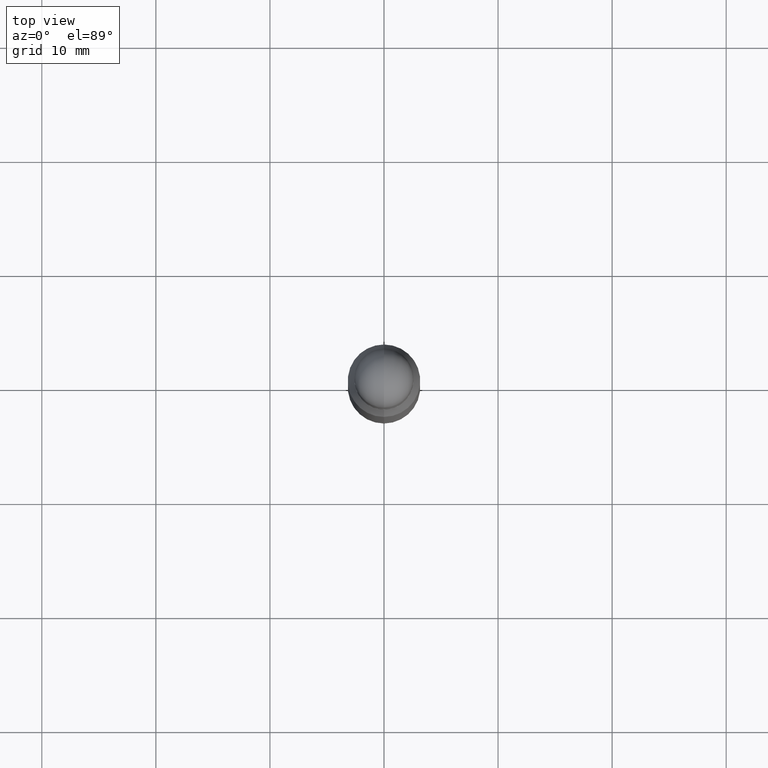
[diagram: clean part render]
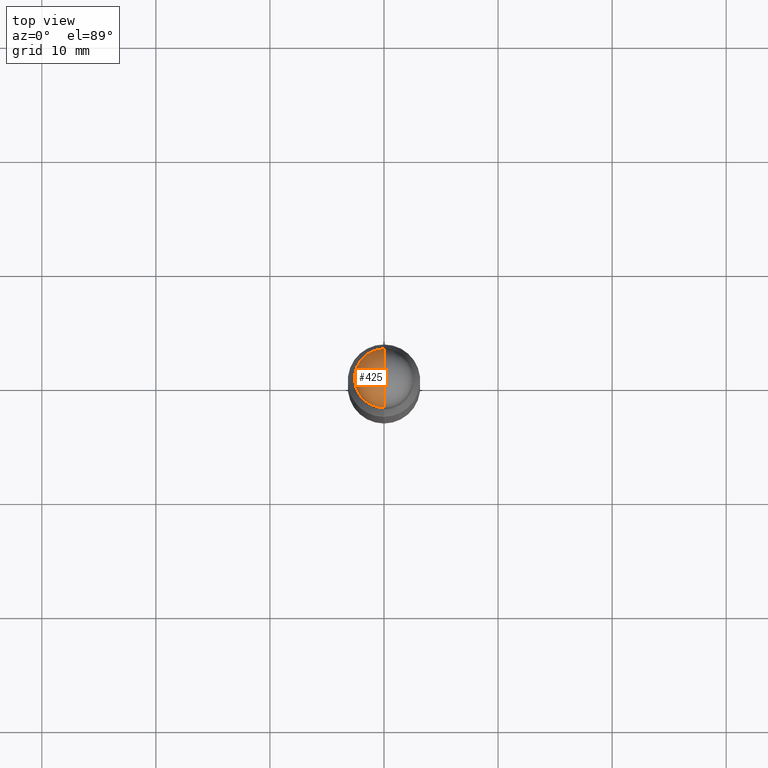
[diagram: same view with one face highlighted and labeled with its STEP entity id]
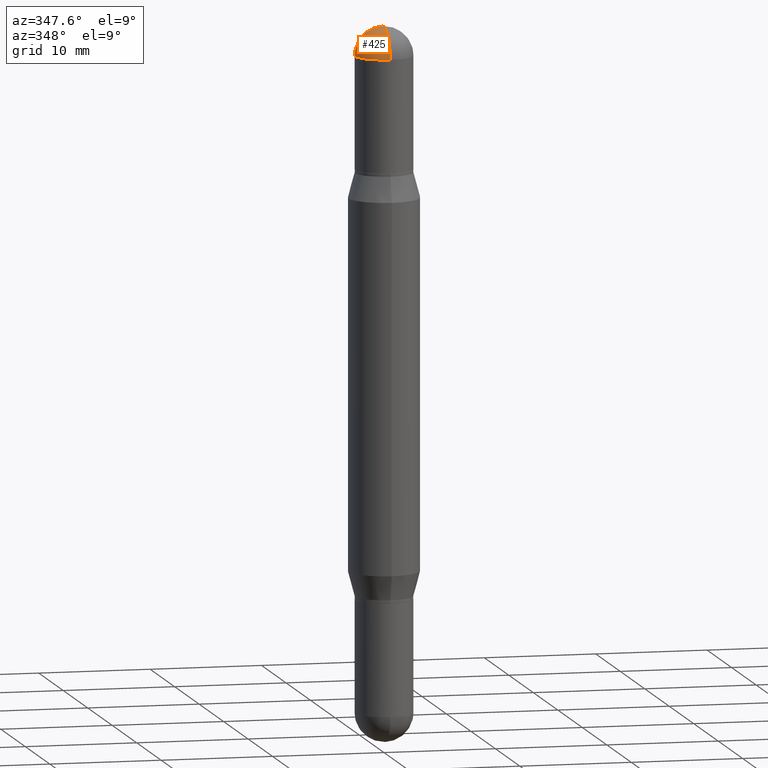
[diagram: same view with one face highlighted and labeled with its STEP entity id]
A machine part, top view. The second image highlights one B-rep face of the part: STEP entity #425.
A second angle (auxiliary view) of the same face is appended — the face is thin or edge-on in the first view.
In plain terms, the highlighted spherical surface has radius 2.5794 mm.
Its self-contained STEP definition (entity closure, byte-faithful):
#48 = ORIENTED_EDGE ( 'NONE', *, *, #266, .T. ) ;
#87 = DIRECTION ( 'NONE',  ( -1.000000000000000000, 6.982962677686265922E-15, 1.566701062080016245E-31 ) ) ;
#95 = AXIS2_PLACEMENT_3D ( 'NONE', #864, #421, #163 ) ;
#110 = CIRCLE ( 'NONE', #802, 0.1015499999999999736 ) ;
#117 = CARTESIAN_POINT ( 'NONE',  ( -0.1015500000000000985, -3.647310594632026057E-16, -0.1015499999999999042 ) ) ;
#155 = DIRECTION ( 'NONE',  ( 1.000000000000000000, -6.860497997771530774E-15, -5.827999781331232286E-31 ) ) ;
#160 = CIRCLE ( 'NONE', #711, 0.1015499999999999736 ) ;
#163 = DIRECTION ( 'NONE',  ( 1.000000000000000000, -6.982962677686265922E-15, 0.000000000000000000 ) ) ;
#175 = VERTEX_POINT ( 'NONE', #675 ) ;
#255 = ORIENTED_EDGE ( 'NONE', *, *, #420, .F. ) ;
#266 = EDGE_CURVE ( 'NONE', #704, #175, #555, .T. ) ;
#398 = AXIS2_PLACEMENT_3D ( 'NONE', #1043, #442, #627 ) ;
#420 = EDGE_CURVE ( 'NONE', #732, #175, #160, .T. ) ;
#421 = DIRECTION ( 'NONE',  ( 2.445468806185136597E-29, 3.479614466977828254E-15, 1.000000000000000000 ) ) ;
#423 = DIRECTION ( 'NONE',  ( -6.982962677686266711E-15, -1.000000000000000000, 0.000000000000000000 ) ) ;
#425 = ADVANCED_FACE ( 'NONE', ( #665 ), #924, .T. ) ;
#442 = DIRECTION ( 'NONE',  ( 2.445468806185136597E-29, 3.479614466977828254E-15, 1.000000000000000000 ) ) ;
#454 = ORIENTED_EDGE ( 'NONE', *, *, #586, .T. ) ;
#461 = EDGE_LOOP ( 'NONE', ( #255, #454, #748, #48 ) ) ;
#481 = CARTESIAN_POINT ( 'NONE',  ( 5.899408758987094508E-29, -3.193923872412167569E-16, -0.1015499999999999042 ) ) ;
#551 = CARTESIAN_POINT ( 'NONE',  ( 6.152088223088502938E-29, 4.018060600305228499E-17, 6.829619984160658046E-17 ) ) ;
#555 = CIRCLE ( 'NONE', #398, 0.1015500000000000985 ) ;
#585 = CARTESIAN_POINT ( 'NONE',  ( 5.899408758987094508E-29, -3.193923872412167569E-16, -0.1015499999999999042 ) ) ;
#586 = EDGE_CURVE ( 'NONE', #732, #650, #110, .T. ) ;
#627 = DIRECTION ( 'NONE',  ( 1.000000000000000000, -6.982962677686265922E-15, 0.000000000000000000 ) ) ;
#650 = VERTEX_POINT ( 'NONE', #900 ) ;
#665 = FACE_OUTER_BOUND ( 'NONE', #461, .T. ) ;
#669 = DIRECTION ( 'NONE',  ( 6.860497997771530774E-15, 1.000000000000000000, 0.000000000000000000 ) ) ;
#675 = CARTESIAN_POINT ( 'NONE',  ( -6.966835716736402566E-16, -0.1015500000000003761, -0.1015499999999995434 ) ) ;
#690 = CARTESIAN_POINT ( 'NONE',  ( 5.899408758987094508E-29, -3.193923872412167569E-16, -0.1015499999999999042 ) ) ;
#704 = VERTEX_POINT ( 'NONE', #117 ) ;
#711 = AXIS2_PLACEMENT_3D ( 'NONE', #585, #155, #669 ) ;
#732 = VERTEX_POINT ( 'NONE', #551 ) ;
#748 = ORIENTED_EDGE ( 'NONE', *, *, #998, .T. ) ;
#802 = AXIS2_PLACEMENT_3D ( 'NONE', #690, #87, #423 ) ;
#843 = DIRECTION ( 'NONE',  ( 1.000000000000000000, -6.982962677686266711E-15, -1.566701062079991284E-31 ) ) ;
#864 = CARTESIAN_POINT ( 'NONE',  ( 5.865334658194741045E-29, -3.681884389532433645E-16, -0.1015499999999999042 ) ) ;
#900 = CARTESIAN_POINT ( 'NONE',  ( 7.091198599190993550E-16, 0.1015499999999996822, -0.1015500000000002651 ) ) ;
#924 = SPHERICAL_SURFACE ( 'NONE', #944, 0.1015499999999999736 ) ;
#930 = CIRCLE ( 'NONE', #95, 0.1015500000000000985 ) ;
#934 = DIRECTION ( 'NONE',  ( 6.982962677686266711E-15, 1.000000000000000000, -3.530822739226338030E-15 ) ) ;
#944 = AXIS2_PLACEMENT_3D ( 'NONE', #481, #843, #934 ) ;
#998 = EDGE_CURVE ( 'NONE', #650, #704, #930, .T. ) ;
#1043 = CARTESIAN_POINT ( 'NONE',  ( 5.865334658194741045E-29, -3.681884389532433645E-16, -0.1015499999999999042 ) ) ;